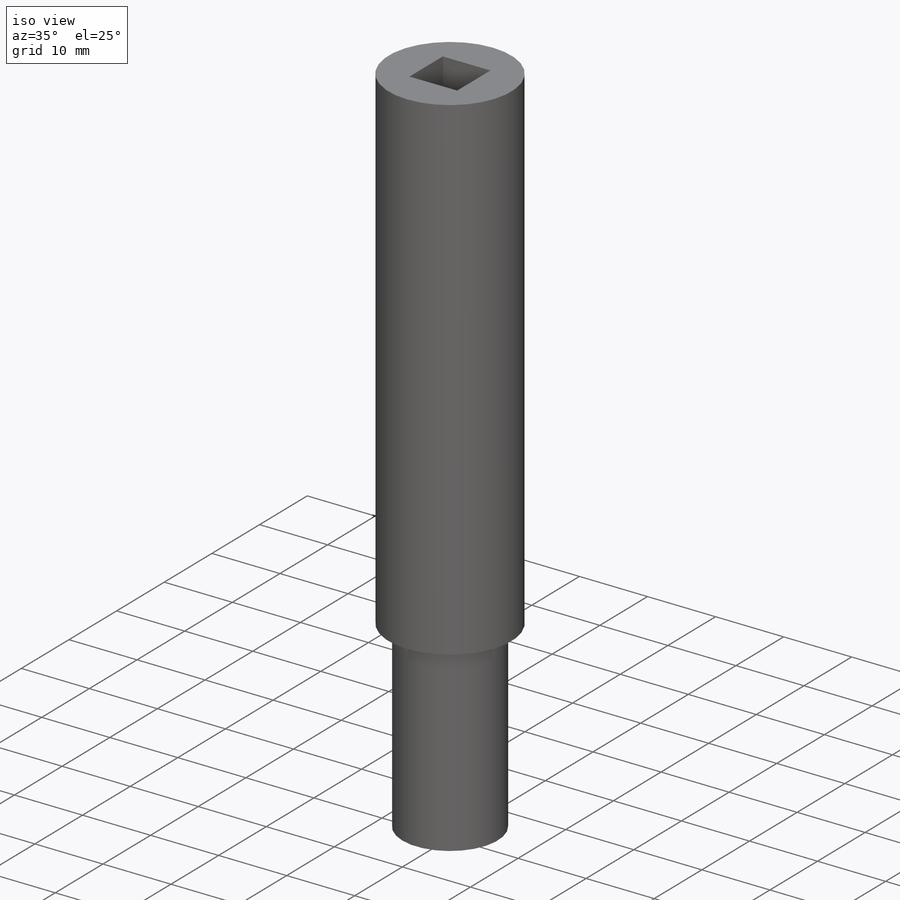
[diagram: iso view]
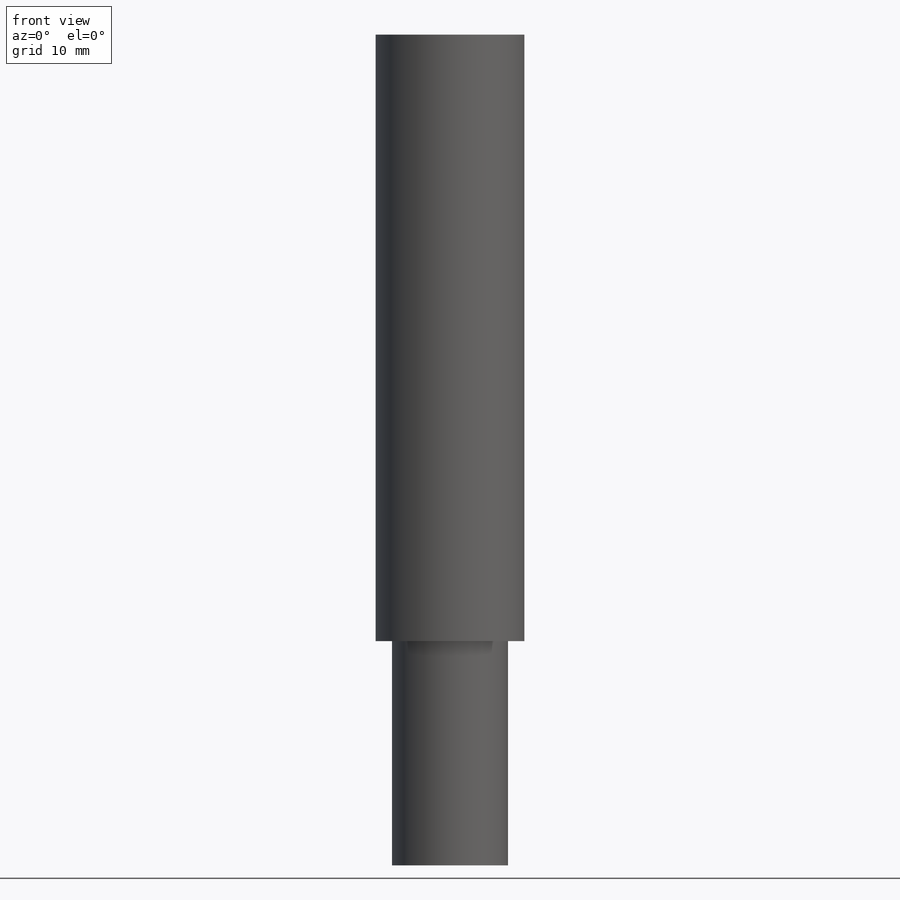
[diagram: front view]
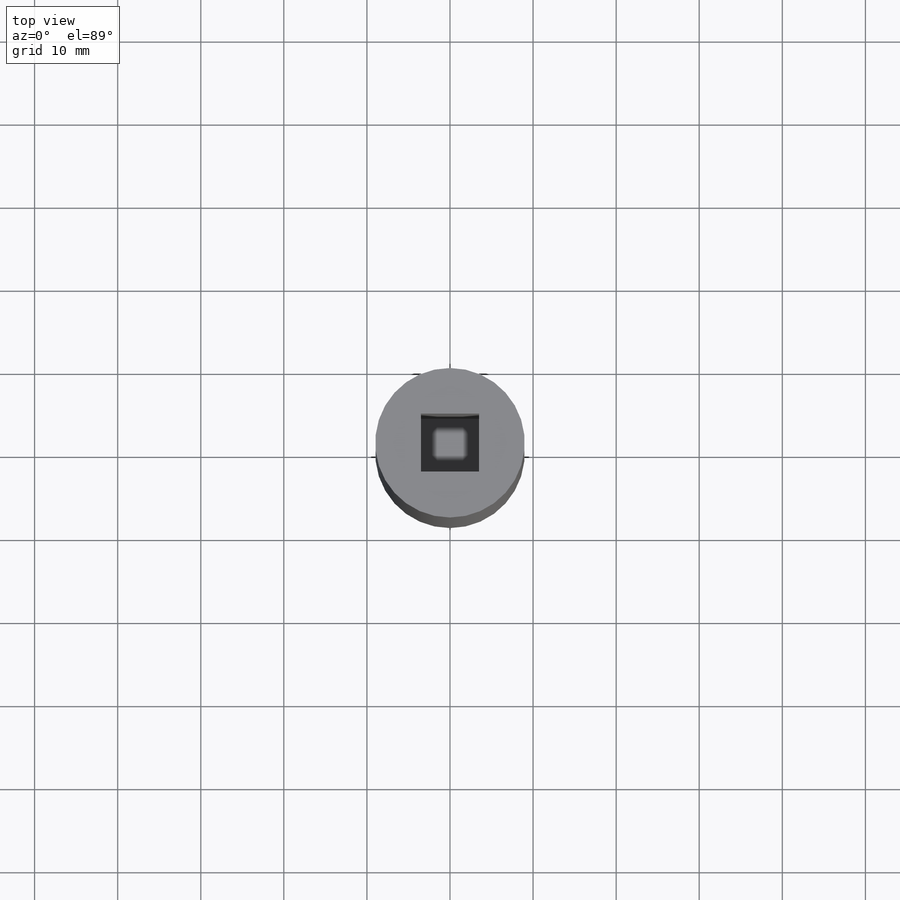
[diagram: top view]
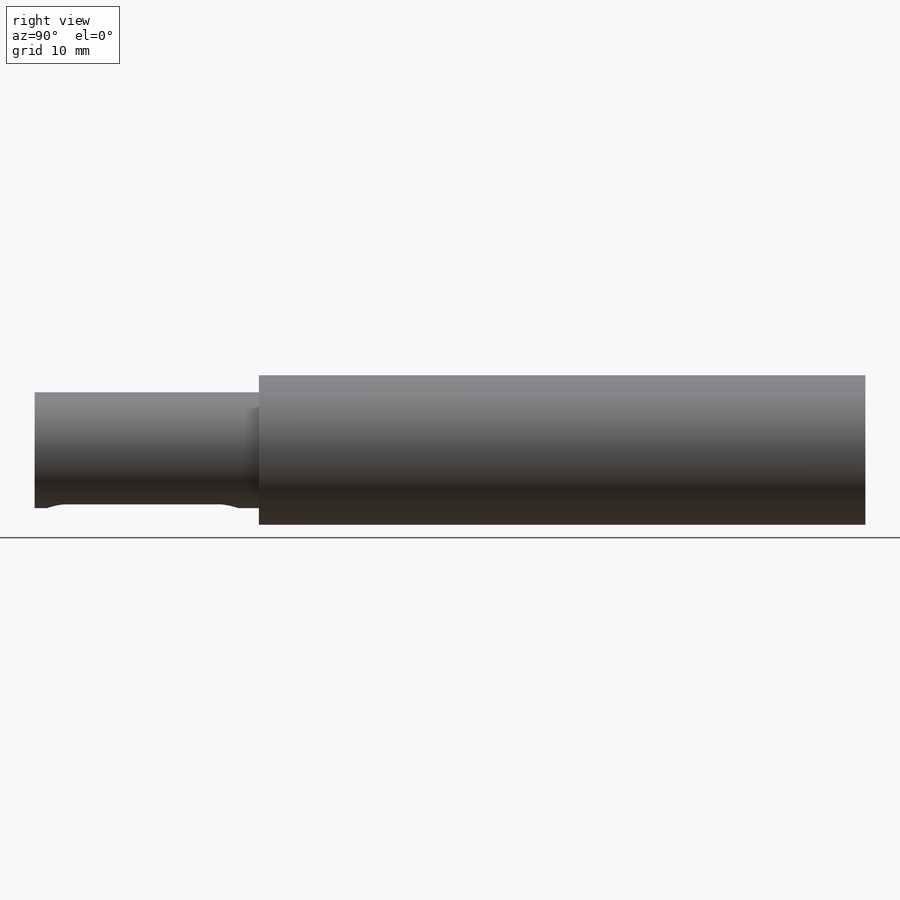
[diagram: right view]
SOLIDWORKS PART (.sldprt)
format: sldprt  version: not decoded by parser v0  size: 354,816 bytes
history: native  units: mm
features: plane x5, sketch x3, cut_extrude x2, material x1, revolve x1 (+10 scaffold rows collapsed)
feature tree (22):
  scaffold x10  (default folders/planes/origin — collapsed)
  material  "普通碳钢"
  plane  "前视基准面"
  plane  "上视基准面"
  plane  "右视基准面"
  sketch  "草图1"  dims[c1.D1=80.0mm c1.D2=7.0mm c1.D3=~27.626665mm c2.D1=100.0mm c2.D3=9.0mm c2.D4=27.0mm]
  revolve  "旋转1"  Angle=360deg
  sketch  "草图2"  dims[c1.D1=8.0mm c1.D2=8.0mm c2.D1=7.0mm]
  plane  "基准面1"  Offset=5.5mm
  plane  "基准面2"
  cut_extrude  "切除-拉伸1"  Depth=35mm
  sketch  "草图4"  dims[D1=~9.384938mm D2=18.0mm D3=4.0mm]
  cut_extrude  "切除-拉伸2"  Depth=3mm
decode coverage: 6 of 6 modeling features carry decoded parameters
note: ~ marks probable driven/reference dimensions
note: suppression state not decoded; provenance and decode notes live in map.json
